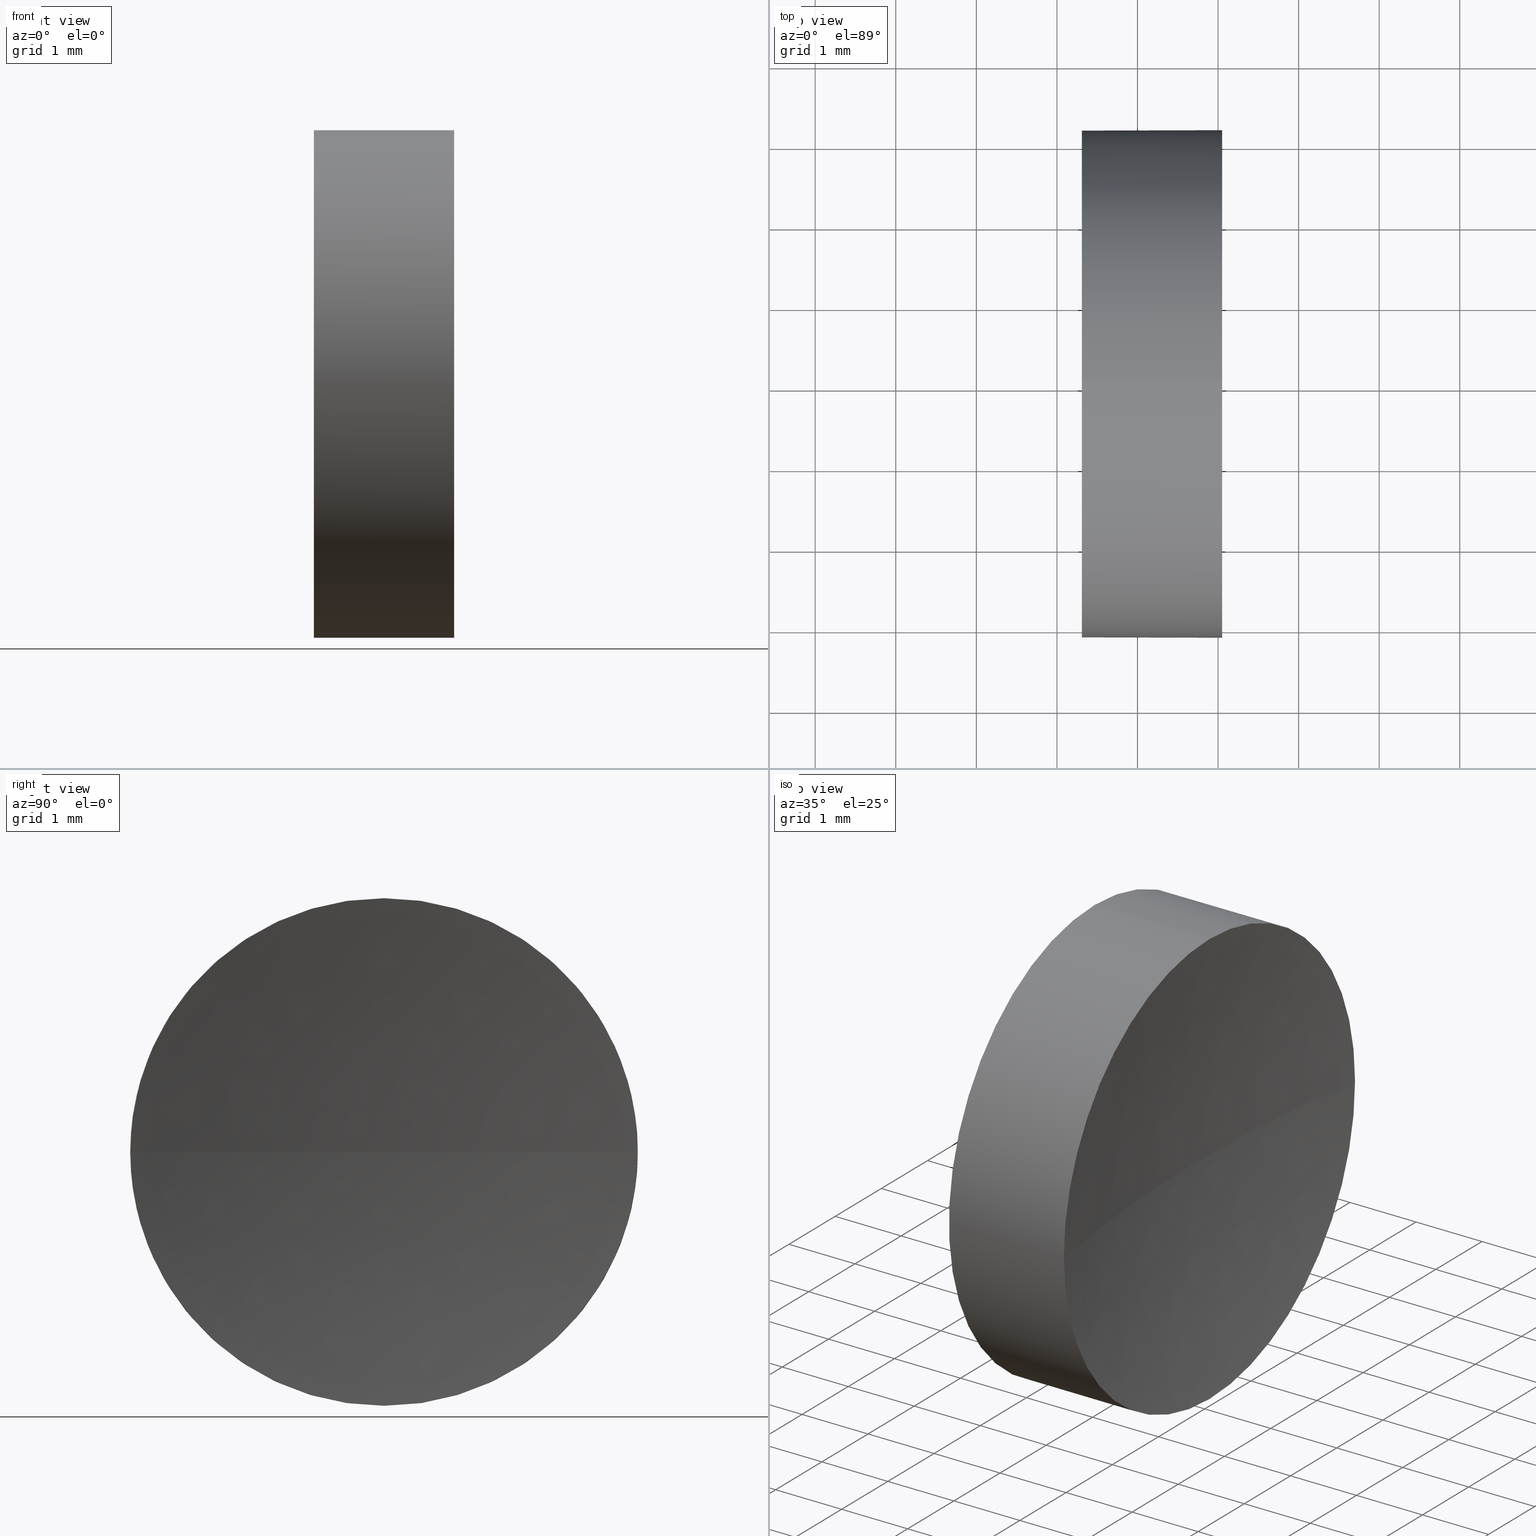
[diagram: canonical four-view strip — front | top / right | iso, engineering-drawing reading convention]
A machine part, canonical four-view strip (front | top / right | iso — engineering-drawing reading convention). The complete STEP part file that produces these views, byte-faithful:
ISO-10303-21;
HEADER;
FILE_DESCRIPTION (( 'STEP AP214' ),
    '1' );
FILE_NAME ('120129.STEP',
    '2019-06-19T02:07:54',
    ( '' ),
    ( '' ),
    'SwSTEP 2.0',
    'SolidWorks 2016',
    '' );
FILE_SCHEMA (( 'AUTOMOTIVE_DESIGN' ));
ENDSEC;

DATA;
#1 = CLOSED_SHELL ( 'NONE', ( #69, #126, #171, #56, #108 ) ) ;
#2 = MECHANICAL_DESIGN_GEOMETRIC_PRESENTATION_REPRESENTATION (  '', ( #135 ), #144 ) ;
#3 = PRODUCT_DEFINITION_SHAPE ( 'NONE', 'NONE',  #112 ) ;
#4 =( NAMED_UNIT ( * ) SI_UNIT ( $, .STERADIAN. ) SOLID_ANGLE_UNIT ( ) );
#5 = CARTESIAN_POINT ( 'NONE',  ( 22.30926883257449200, 13.03112609140304000, 0.0000000000000000000 ) ) ;
#6 = CARTESIAN_POINT ( 'NONE',  ( 24.05093720061594100, 13.03112609140304000, 0.0000000000000000000 ) ) ;
#7 = EDGE_CURVE ( 'NONE', #145, #57, #45, .T. ) ;
#8 = CARTESIAN_POINT ( 'NONE',  ( 24.05093720061594100, 13.03112609140304000, 0.0000000000000000000 ) ) ;
#9 = FILL_AREA_STYLE ('',( #152 ) ) ;
#10 = CARTESIAN_POINT ( 'NONE',  ( 44.45926883257450200, 13.03112609140303700, 0.0000000000000000000 ) ) ;
#11 = EDGE_CURVE ( 'NONE', #57, #145, #96, .T. ) ;
#12 = MECHANICAL_DESIGN_GEOMETRIC_PRESENTATION_REPRESENTATION (  '', ( #42 ), #27 ) ;
#13 = CARTESIAN_POINT ( 'NONE',  ( 24.05093720061594100, 9.881126091403023900, -3.857637417314176500E-016 ) ) ;
#14 = PRESENTATION_STYLE_ASSIGNMENT (( #84 ) ) ;
#15 = MANIFOLD_SOLID_BREP ( '��ת1', #1 ) ;
#16 = DIRECTION ( 'NONE',  ( -1.000000000000000000, -0.0000000000000000000, -0.0000000000000000000 ) ) ;
#17 =( NAMED_UNIT ( * ) PLANE_ANGLE_UNIT ( ) SI_UNIT ( $, .RADIAN. ) );
#18 = FACE_OUTER_BOUND ( 'NONE', #28, .T. ) ;
#19 = DIRECTION ( 'NONE',  ( 0.0000000000000000000, 0.0000000000000000000, -1.000000000000000000 ) ) ;
#20 = DIRECTION ( 'NONE',  ( 0.0000000000000000000, 0.0000000000000000000, 1.000000000000000000 ) ) ;
#21 = DIRECTION ( 'NONE',  ( 0.0000000000000000000, 0.0000000000000000000, 1.000000000000000000 ) ) ;
#22 = AXIS2_PLACEMENT_3D ( 'NONE', #30, #129, #43 ) ;
#23 = ORIENTED_EDGE ( 'NONE', *, *, #61, .F. ) ;
#24 = DIRECTION ( 'NONE',  ( -1.000000000000000000, -0.0000000000000000000, -0.0000000000000000000 ) ) ;
#25 = CIRCLE ( 'NONE', #153, 3.150000000000001700 ) ;
#26 = FACE_OUTER_BOUND ( 'NONE', #120, .T. ) ;
#27 =( GEOMETRIC_REPRESENTATION_CONTEXT ( 3 ) GLOBAL_UNCERTAINTY_ASSIGNED_CONTEXT ( ( #131 ) ) GLOBAL_UNIT_ASSIGNED_CONTEXT ( ( #146, #17, #4 ) ) REPRESENTATION_CONTEXT ( 'NONE', 'WORKASPACE' ) );
#28 = EDGE_LOOP ( 'NONE', ( #98, #83, #174, #80 ) ) ;
#29 = ORIENTED_EDGE ( 'NONE', *, *, #11, .T. ) ;
#30 = CARTESIAN_POINT ( 'NONE',  ( 44.45926883257450200, 13.03112609140303700, 0.0000000000000000000 ) ) ;
#31 = CARTESIAN_POINT ( 'NONE',  ( 22.30926883257449200, 13.03112609140304000, 0.0000000000000000000 ) ) ;
#32 = UNCERTAINTY_MEASURE_WITH_UNIT (LENGTH_MEASURE( 1.000000000000000100E-005 ), #137, 'distance_accuracy_value', 'NONE');
#33 = SURFACE_SIDE_STYLE ('',( #53 ) ) ;
#34 = DIRECTION ( 'NONE',  ( -1.000000000000000000, -0.0000000000000000000, -0.0000000000000000000 ) ) ;
#35 = AXIS2_PLACEMENT_3D ( 'NONE', #73, #160, #148 ) ;
#36 = CARTESIAN_POINT ( 'NONE',  ( 44.45926883257450200, 13.03112609140303700, 0.0000000000000000000 ) ) ;
#37 =( NAMED_UNIT ( * ) PLANE_ANGLE_UNIT ( ) SI_UNIT ( $, .RADIAN. ) );
#38 = ORIENTED_EDGE ( 'NONE', *, *, #7, .F. ) ;
#39 = ORIENTED_EDGE ( 'NONE', *, *, #11, .F. ) ;
#40 = AXIS2_PLACEMENT_3D ( 'NONE', #6, #24, #116 ) ;
#41 = VERTEX_POINT ( 'NONE', #99 ) ;
#42 = STYLED_ITEM ( 'NONE', ( #14 ), #15 ) ;
#43 = DIRECTION ( 'NONE',  ( 0.0000000000000000000, 1.000000000000000000, 1.224646799147353200E-016 ) ) ;
#44 = DIRECTION ( 'NONE',  ( 0.0000000000000000000, 0.0000000000000000000, 1.000000000000000000 ) ) ;
#45 = CIRCLE ( 'NONE', #87, 3.149999999999998100 ) ;
#46 = CARTESIAN_POINT ( 'NONE',  ( 22.30926883257449200, 13.03112609140304000, -3.149999999999998100 ) ) ;
#47 = DIRECTION ( 'NONE',  ( 0.0000000000000000000, 1.000000000000000000, 0.0000000000000000000 ) ) ;
#48 = PRESENTATION_LAYER_ASSIGNMENT (  '', '', ( #42 ) ) ;
#49 = ORIENTED_EDGE ( 'NONE', *, *, #117, .F. ) ;
#50 = APPLICATION_CONTEXT ( 'automotive_design' ) ;
#51 = LINE ( 'NONE', #60, #122 ) ;
#52 = AXIS2_PLACEMENT_3D ( 'NONE', #103, #151, #19 ) ;
#53 = SURFACE_STYLE_FILL_AREA ( #59 ) ;
#54 = EDGE_CURVE ( 'NONE', #41, #115, #25, .T. ) ;
#55 = ORIENTED_EDGE ( 'NONE', *, *, #128, .T. ) ;
#56 = ADVANCED_FACE ( 'NONE', ( #134 ), #67, .T. ) ;
#57 = VERTEX_POINT ( 'NONE', #162 ) ;
#58 = EDGE_CURVE ( 'NONE', #142, #138, #71, .T. ) ;
#59 = FILL_AREA_STYLE ('',( #101 ) ) ;
#60 = CARTESIAN_POINT ( 'NONE',  ( 20.68403063513288800, 13.03112609140304000, 3.149999999999999900 ) ) ;
#61 = EDGE_CURVE ( 'NONE', #115, #109, #104, .T. ) ;
#62 = CARTESIAN_POINT ( 'NONE',  ( 24.05093720061594100, 16.18112609140305100, 0.0000000000000000000 ) ) ;
#63 = ORIENTED_EDGE ( 'NONE', *, *, #147, .F. ) ;
#64 =( NAMED_UNIT ( * ) SI_UNIT ( $, .STERADIAN. ) SOLID_ANGLE_UNIT ( ) );
#65 = UNCERTAINTY_MEASURE_WITH_UNIT (LENGTH_MEASURE( 1.000000000000000100E-005 ), #179, 'distance_accuracy_value', 'NONE');
#66 = PRESENTATION_STYLE_ASSIGNMENT (( #78 ) ) ;
#67 = CYLINDRICAL_SURFACE ( 'NONE', #106, 3.149999999999999900 ) ;
#68 = AXIS2_PLACEMENT_3D ( 'NONE', #8, #34, #21 ) ;
#69 = ADVANCED_FACE ( 'NONE', ( #185 ), #125, .T. ) ;
#70 = AXIS2_PLACEMENT_3D ( 'NONE', #105, #164, #91 ) ;
#71 = CIRCLE ( 'NONE', #35, 3.150000000000001700 ) ;
#72 = DIRECTION ( 'NONE',  ( -1.000000000000000000, -0.0000000000000000000, -0.0000000000000000000 ) ) ;
#73 = CARTESIAN_POINT ( 'NONE',  ( 24.05093720061594100, 13.03112609140304000, 0.0000000000000000000 ) ) ;
#74 = PLANE ( 'NONE',  #52 ) ;
#75 = ORIENTED_EDGE ( 'NONE', *, *, #54, .T. ) ;
#76 = CARTESIAN_POINT ( 'NONE',  ( 0.0000000000000000000, 0.0000000000000000000, 0.0000000000000000000 ) ) ;
#77 = DIRECTION ( 'NONE',  ( 1.000000000000000000, 0.0000000000000000000, 0.0000000000000000000 ) ) ;
#78 = SURFACE_STYLE_USAGE ( .BOTH. , #118 ) ;
#79 = ORIENTED_EDGE ( 'NONE', *, *, #169, .T. ) ;
#80 = ORIENTED_EDGE ( 'NONE', *, *, #58, .F. ) ;
#81 = AXIS2_PLACEMENT_3D ( 'NONE', #5, #72, #132 ) ;
#82 = CIRCLE ( 'NONE', #68, 3.150000000000001700 ) ;
#83 = ORIENTED_EDGE ( 'NONE', *, *, #61, .T. ) ;
#84 = SURFACE_STYLE_USAGE ( .BOTH. , #33 ) ;
#85 = CARTESIAN_POINT ( 'NONE',  ( 23.80926883257448900, 13.03112609140303800, 0.0000000000000000000 ) ) ;
#86 = CIRCLE ( 'NONE', #40, 3.150000000000001700 ) ;
#87 = AXIS2_PLACEMENT_3D ( 'NONE', #31, #114, #133 ) ;
#88 = PRODUCT_DEFINITION_CONTEXT ( 'detailed design', #183, 'design' ) ;
#89 = COLOUR_RGB ( '',1.000000000000000000, 1.000000000000000000, 1.000000000000000000 ) ;
#90 = DIRECTION ( 'NONE',  ( 0.0000000000000000000, 0.0000000000000000000, 1.000000000000000000 ) ) ;
#91 = DIRECTION ( 'NONE',  ( 0.0000000000000000000, 1.000000000000000000, 0.0000000000000000000 ) ) ;
#92 = SPHERICAL_SURFACE ( 'NONE', #107, 20.65000000000000900 ) ;
#93 = CIRCLE ( 'NONE', #95, 20.65000000000000900 ) ;
#94 = ORIENTED_EDGE ( 'NONE', *, *, #117, .T. ) ;
#95 = AXIS2_PLACEMENT_3D ( 'NONE', #36, #20, #77 ) ;
#96 = CIRCLE ( 'NONE', #81, 3.149999999999998100 ) ;
#97 = AXIS2_PLACEMENT_3D ( 'NONE', #177, #175, #110 ) ;
#98 = ORIENTED_EDGE ( 'NONE', *, *, #140, .F. ) ;
#99 = CARTESIAN_POINT ( 'NONE',  ( 24.05093720061594100, 13.03112609140304000, -3.150000000000001200 ) ) ;
#100 = DIRECTION ( 'NONE',  ( -1.000000000000000000, -0.0000000000000000000, -0.0000000000000000000 ) ) ;
#101 = FILL_AREA_STYLE_COLOUR ( '', #89 ) ;
#102 = APPLICATION_PROTOCOL_DEFINITION ( 'draft international standard', 'automotive_design', 1998, #183 ) ;
#103 = CARTESIAN_POINT ( 'NONE',  ( 22.30926883257449200, 13.03112609140304000, 0.0000000000000000000 ) ) ;
#104 = CIRCLE ( 'NONE', #22, 20.65000000000000900 ) ;
#105 = CARTESIAN_POINT ( 'NONE',  ( 44.45926883257450200, 13.03112609140303700, 0.0000000000000000000 ) ) ;
#106 = AXIS2_PLACEMENT_3D ( 'NONE', #161, #100, #149 ) ;
#107 = AXIS2_PLACEMENT_3D ( 'NONE', #10, #166, #47 ) ;
#108 = ADVANCED_FACE ( 'NONE', ( #173 ), #74, .F. ) ;
#109 = VERTEX_POINT ( 'NONE', #85 ) ;
#110 = DIRECTION ( 'NONE',  ( 0.0000000000000000000, 0.0000000000000000000, 1.000000000000000000 ) ) ;
#111 = CARTESIAN_POINT ( 'NONE',  ( 24.05093720061594100, 13.03112609140304000, 3.150000000000001200 ) ) ;
#112 = PRODUCT_DEFINITION ( 'δ֪', '', #157, #88 ) ;
#113 = EDGE_LOOP ( 'NONE', ( #29, #158 ) ) ;
#114 = DIRECTION ( 'NONE',  ( -1.000000000000000000, -0.0000000000000000000, -0.0000000000000000000 ) ) ;
#115 = VERTEX_POINT ( 'NONE', #13 ) ;
#116 = DIRECTION ( 'NONE',  ( 0.0000000000000000000, 0.0000000000000000000, 1.000000000000000000 ) ) ;
#117 = EDGE_CURVE ( 'NONE', #138, #41, #86, .T. ) ;
#118 = SURFACE_SIDE_STYLE ('',( #143 ) ) ;
#119 = CARTESIAN_POINT ( 'NONE',  ( 20.68403063513288800, 13.03112609140304000, -3.149999999999999900 ) ) ;
#120 = EDGE_LOOP ( 'NONE', ( #23, #180, #49, #79 ) ) ;
#121 = PRODUCT_RELATED_PRODUCT_CATEGORY ( 'part', '', ( #150 ) ) ;
#122 = VECTOR ( 'NONE', #154, 1000.000000000000000 ) ;
#123 = COLOUR_RGB ( '',1.000000000000000000, 1.000000000000000000, 1.000000000000000000 ) ;
#124 = ORIENTED_EDGE ( 'NONE', *, *, #58, .T. ) ;
#125 = CYLINDRICAL_SURFACE ( 'NONE', #97, 3.149999999999999900 ) ;
#126 = ADVANCED_FACE ( 'NONE', ( #18 ), #92, .F. ) ;
#127 = SPHERICAL_SURFACE ( 'NONE', #70, 20.65000000000000900 ) ;
#128 = EDGE_CURVE ( 'NONE', #142, #57, #51, .T. ) ;
#129 = DIRECTION ( 'NONE',  ( 0.0000000000000000000, 1.224646799147353200E-016, -1.000000000000000000 ) ) ;
#130 = EDGE_LOOP ( 'NONE', ( #94, #163, #39, #172, #124 ) ) ;
#131 = UNCERTAINTY_MEASURE_WITH_UNIT (LENGTH_MEASURE( 1.000000000000000100E-005 ), #146, 'distance_accuracy_value', 'NONE');
#132 = DIRECTION ( 'NONE',  ( 0.0000000000000000000, 0.0000000000000000000, 1.000000000000000000 ) ) ;
#133 = DIRECTION ( 'NONE',  ( 0.0000000000000000000, 0.0000000000000000000, 1.000000000000000000 ) ) ;
#134 = FACE_OUTER_BOUND ( 'NONE', #159, .T. ) ;
#135 = STYLED_ITEM ( 'NONE', ( #66 ), #186 ) ;
#136 = LINE ( 'NONE', #119, #184 ) ;
#137 =( LENGTH_UNIT ( ) NAMED_UNIT ( * ) SI_UNIT ( .MILLI., .METRE. ) );
#138 = VERTEX_POINT ( 'NONE', #62 ) ;
#139 = DIRECTION ( 'NONE',  ( 1.000000000000000000, 0.0000000000000000000, 0.0000000000000000000 ) ) ;
#140 = EDGE_CURVE ( 'NONE', #115, #142, #82, .T. ) ;
#141 =( GEOMETRIC_REPRESENTATION_CONTEXT ( 3 ) GLOBAL_UNCERTAINTY_ASSIGNED_CONTEXT ( ( #32 ) ) GLOBAL_UNIT_ASSIGNED_CONTEXT ( ( #137, #181, #165 ) ) REPRESENTATION_CONTEXT ( 'NONE', 'WORKASPACE' ) );
#142 = VERTEX_POINT ( 'NONE', #111 ) ;
#143 = SURFACE_STYLE_FILL_AREA ( #9 ) ;
#144 =( GEOMETRIC_REPRESENTATION_CONTEXT ( 3 ) GLOBAL_UNCERTAINTY_ASSIGNED_CONTEXT ( ( #65 ) ) GLOBAL_UNIT_ASSIGNED_CONTEXT ( ( #179, #37, #64 ) ) REPRESENTATION_CONTEXT ( 'NONE', 'WORKASPACE' ) );
#145 = VERTEX_POINT ( 'NONE', #46 ) ;
#146 =( LENGTH_UNIT ( ) NAMED_UNIT ( * ) SI_UNIT ( .MILLI., .METRE. ) );
#147 = EDGE_CURVE ( 'NONE', #41, #145, #136, .T. ) ;
#148 = DIRECTION ( 'NONE',  ( 0.0000000000000000000, 0.0000000000000000000, 1.000000000000000000 ) ) ;
#149 = DIRECTION ( 'NONE',  ( 0.0000000000000000000, 0.0000000000000000000, 1.000000000000000000 ) ) ;
#150 = PRODUCT ( '120129', '120129', '', ( #168 ) ) ;
#151 = DIRECTION ( 'NONE',  ( 1.000000000000000000, 0.0000000000000000000, 0.0000000000000000000 ) ) ;
#152 = FILL_AREA_STYLE_COLOUR ( '', #123 ) ;
#153 = AXIS2_PLACEMENT_3D ( 'NONE', #176, #16, #44 ) ;
#154 = DIRECTION ( 'NONE',  ( -1.000000000000000000, -0.0000000000000000000, -0.0000000000000000000 ) ) ;
#155 = APPLICATION_PROTOCOL_DEFINITION ( 'draft international standard', 'automotive_design', 1998, #50 ) ;
#156 = ORIENTED_EDGE ( 'NONE', *, *, #140, .T. ) ;
#157 = PRODUCT_DEFINITION_FORMATION_WITH_SPECIFIED_SOURCE ( '�κ�', '', #150, .NOT_KNOWN. ) ;
#158 = ORIENTED_EDGE ( 'NONE', *, *, #7, .T. ) ;
#159 = EDGE_LOOP ( 'NONE', ( #63, #75, #156, #55, #38 ) ) ;
#160 = DIRECTION ( 'NONE',  ( -1.000000000000000000, -0.0000000000000000000, -0.0000000000000000000 ) ) ;
#161 = CARTESIAN_POINT ( 'NONE',  ( 20.68403063513288800, 13.03112609140304000, 0.0000000000000000000 ) ) ;
#162 = CARTESIAN_POINT ( 'NONE',  ( 22.30926883257449200, 13.03112609140304000, 3.149999999999998100 ) ) ;
#163 = ORIENTED_EDGE ( 'NONE', *, *, #147, .T. ) ;
#164 = DIRECTION ( 'NONE',  ( 0.0000000000000000000, 0.0000000000000000000, -1.000000000000000000 ) ) ;
#165 =( NAMED_UNIT ( * ) SI_UNIT ( $, .STERADIAN. ) SOLID_ANGLE_UNIT ( ) );
#166 = DIRECTION ( 'NONE',  ( 0.0000000000000000000, 0.0000000000000000000, -1.000000000000000000 ) ) ;
#167 = DIRECTION ( 'NONE',  ( -1.000000000000000000, -0.0000000000000000000, -0.0000000000000000000 ) ) ;
#168 = PRODUCT_CONTEXT ( 'NONE', #50, 'mechanical' ) ;
#169 = EDGE_CURVE ( 'NONE', #138, #109, #93, .T. ) ;
#170 = PRESENTATION_LAYER_ASSIGNMENT (  '', '', ( #135 ) ) ;
#171 = ADVANCED_FACE ( 'NONE', ( #26 ), #127, .F. ) ;
#172 = ORIENTED_EDGE ( 'NONE', *, *, #128, .F. ) ;
#173 = FACE_OUTER_BOUND ( 'NONE', #113, .T. ) ;
#174 = ORIENTED_EDGE ( 'NONE', *, *, #169, .F. ) ;
#175 = DIRECTION ( 'NONE',  ( -1.000000000000000000, -0.0000000000000000000, -0.0000000000000000000 ) ) ;
#176 = CARTESIAN_POINT ( 'NONE',  ( 24.05093720061594100, 13.03112609140304000, 0.0000000000000000000 ) ) ;
#177 = CARTESIAN_POINT ( 'NONE',  ( 20.68403063513288800, 13.03112609140304000, 0.0000000000000000000 ) ) ;
#178 = SHAPE_DEFINITION_REPRESENTATION ( #3, #186 ) ;
#179 =( LENGTH_UNIT ( ) NAMED_UNIT ( * ) SI_UNIT ( .MILLI., .METRE. ) );
#180 = ORIENTED_EDGE ( 'NONE', *, *, #54, .F. ) ;
#181 =( NAMED_UNIT ( * ) PLANE_ANGLE_UNIT ( ) SI_UNIT ( $, .RADIAN. ) );
#182 = AXIS2_PLACEMENT_3D ( 'NONE', #76, #90, #139 ) ;
#183 = APPLICATION_CONTEXT ( 'automotive_design' ) ;
#184 = VECTOR ( 'NONE', #167, 1000.000000000000000 ) ;
#185 = FACE_OUTER_BOUND ( 'NONE', #130, .T. ) ;
#186 = ADVANCED_BREP_SHAPE_REPRESENTATION ( '120129', ( #15, #182 ), #141 ) ;
ENDSEC;
END-ISO-10303-21;
